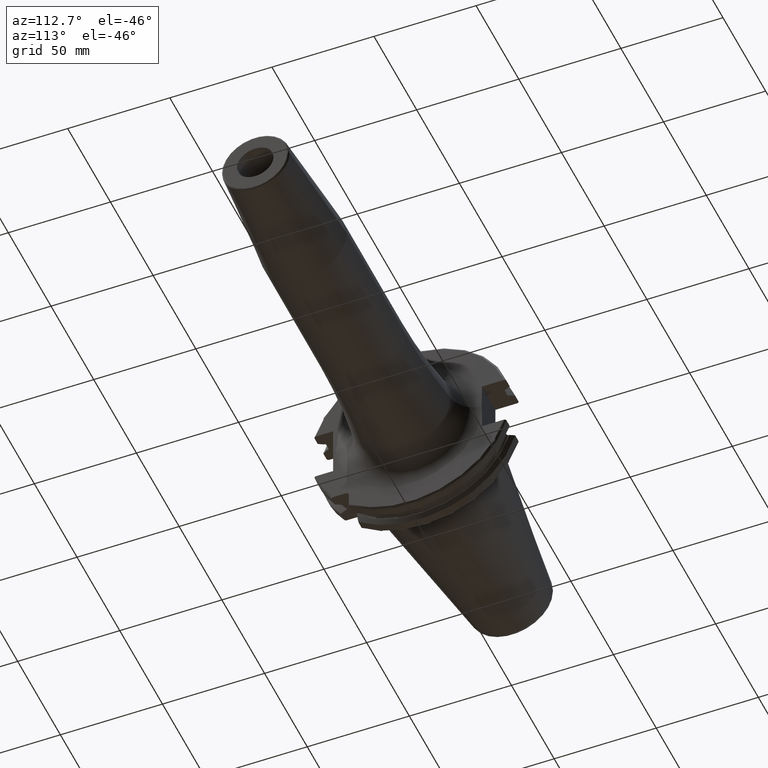
[diagram: clean part render]
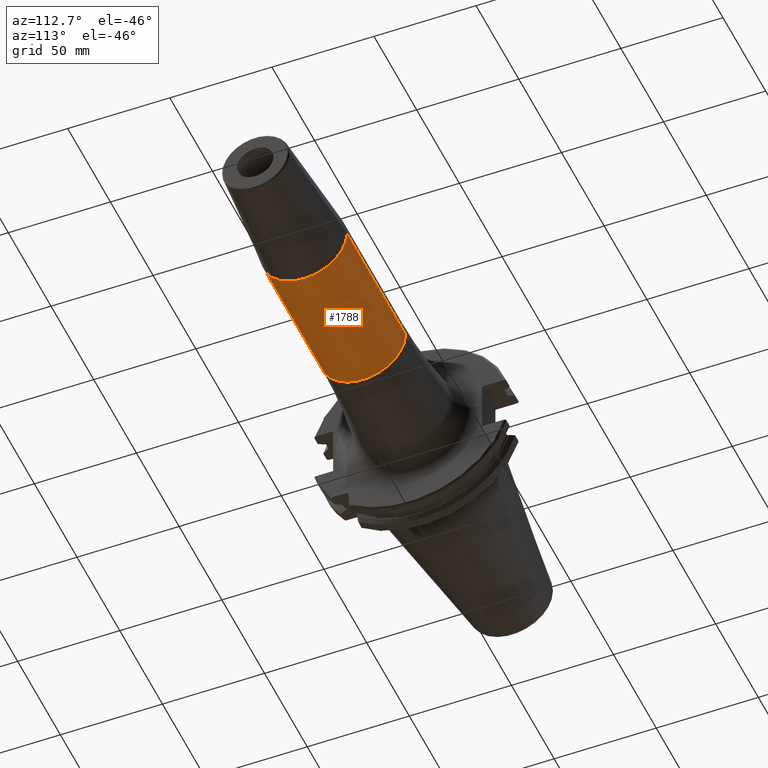
[diagram: same view with one face highlighted and labeled with its STEP entity id]
A machine part, auxiliary view. The second image highlights one B-rep face of the part: STEP entity #1788.
In plain terms, the highlighted cylindrical surface (partial cylindrical patch) has radius 21 mm, axis along (1, 0, 0).
Its self-contained STEP definition (entity closure, byte-faithful):
#216=CARTESIAN_POINT('',(7.405E1,0.E0,0.E0));
#217=DIRECTION('',(1.E0,0.E0,0.E0));
#218=DIRECTION('',(0.E0,-1.E0,0.E0));
#219=AXIS2_PLACEMENT_3D('',#216,#217,#218);
#221=DIRECTION('',(-1.E0,0.E0,0.E0));
#222=VECTOR('',#221,6.877207868721E1);
#223=CARTESIAN_POINT('',(1.428220786872E2,-2.1E1,0.E0));
#224=LINE('',#223,#222);
#225=CARTESIAN_POINT('',(1.428220786872E2,0.E0,0.E0));
#226=DIRECTION('',(-1.E0,0.E0,0.E0));
#227=DIRECTION('',(0.E0,1.E0,0.E0));
#228=AXIS2_PLACEMENT_3D('',#225,#226,#227);
#230=DIRECTION('',(-1.E0,0.E0,0.E0));
#231=VECTOR('',#230,6.877207868721E1);
#232=CARTESIAN_POINT('',(1.428220786872E2,2.1E1,0.E0));
#233=LINE('',#232,#231);
#1470=CARTESIAN_POINT('',(1.428220786872E2,2.1E1,0.E0));
#1471=CARTESIAN_POINT('',(1.428220786872E2,-2.1E1,0.E0));
#1472=VERTEX_POINT('',#1470);
#1473=VERTEX_POINT('',#1471);
#1500=CARTESIAN_POINT('',(7.405E1,2.1E1,0.E0));
#1501=VERTEX_POINT('',#1500);
#1502=CARTESIAN_POINT('',(7.405E1,-2.1E1,0.E0));
#1503=VERTEX_POINT('',#1502);
#1774=CARTESIAN_POINT('',(1.00025E1,0.E0,0.E0));
#1775=DIRECTION('',(1.E0,0.E0,0.E0));
#1776=DIRECTION('',(0.E0,-1.E0,0.E0));
#1777=AXIS2_PLACEMENT_3D('',#1774,#1775,#1776);
#1778=CYLINDRICAL_SURFACE('',#1777,2.1E1);
#1779=ORIENTED_EDGE('',*,*,#1768,.F.);
#1781=ORIENTED_EDGE('',*,*,#1780,.F.);
#1783=ORIENTED_EDGE('',*,*,#1782,.F.);
#1785=ORIENTED_EDGE('',*,*,#1784,.T.);
#1786=EDGE_LOOP('',(#1779,#1781,#1783,#1785));
#1787=FACE_OUTER_BOUND('',#1786,.F.);
#1788=ADVANCED_FACE('',(#1787),#1778,.T.);
#220=CIRCLE('',#219,2.1E1);
#229=CIRCLE('',#228,2.1E1);
#1768=EDGE_CURVE('',#1503,#1501,#220,.T.);
#1780=EDGE_CURVE('',#1473,#1503,#224,.T.);
#1782=EDGE_CURVE('',#1472,#1473,#229,.T.);
#1784=EDGE_CURVE('',#1472,#1501,#233,.T.);